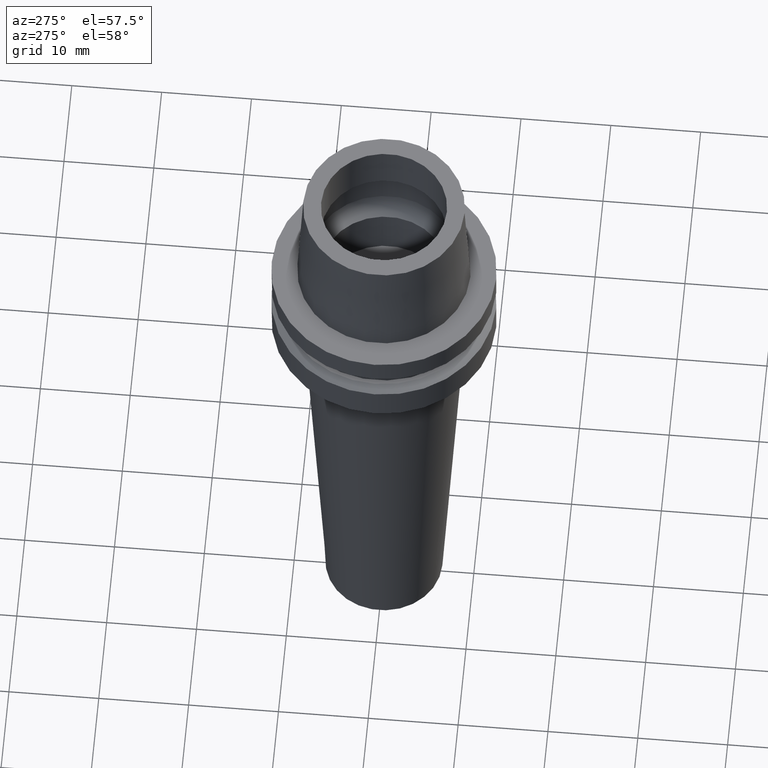
[diagram: clean part render]
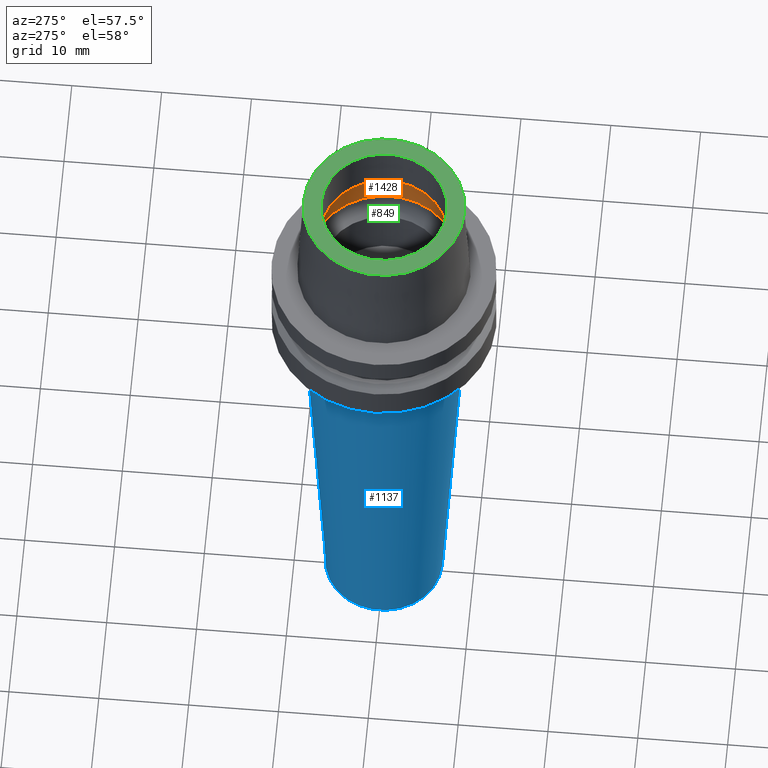
[diagram: same view with three faces highlighted in distinct colors, each labeled with its STEP entity id]
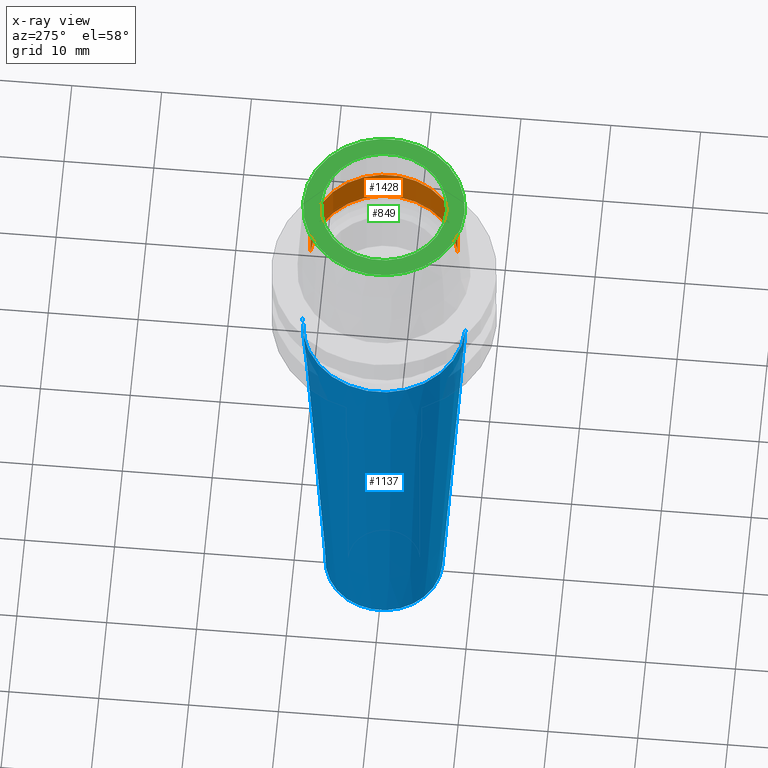
[diagram: x-ray of the same camera — body ghosted, the three highlighted faces saturated]
A machine part, auxiliary view with three faces highlighted in distinct colors.
The next image is the same camera in x-ray (body ghosted, the three faces saturated) — at least one of them is partly hidden behind the body in this view.
Their STEP definitions:

[orange] entity #1428 — the highlighted cylindrical surface (partial cylindrical patch) has radius 8.2 mm, axis along (0, 0, -1).
#630=CARTESIAN_POINT('',(0.E0,1.254650645726E-14,2.45E0));
#631=DIRECTION('',(0.E0,0.E0,-1.E0));
#632=DIRECTION('',(0.E0,1.E0,0.E0));
#633=AXIS2_PLACEMENT_3D('',#630,#631,#632);
#646=DIRECTION('',(0.E0,1.141865228637E-14,1.E0));
#647=VECTOR('',#646,4.355854811567E0);
#648=CARTESIAN_POINT('',(0.E0,8.2E0,2.45E0));
#649=LINE('',#648,#647);
#653=DIRECTION('',(0.E0,-1.141865228637E-14,1.E0));
#654=VECTOR('',#653,4.355854811567E0);
#655=CARTESIAN_POINT('',(0.E0,-8.2E0,2.45E0));
#656=LINE('',#655,#654);
#698=CARTESIAN_POINT('',(0.E0,1.312236783207E-14,6.805854811567E0));
#699=DIRECTION('',(0.E0,0.E0,1.E0));
#700=DIRECTION('',(0.E0,-1.E0,0.E0));
#701=AXIS2_PLACEMENT_3D('',#698,#699,#700);
#732=CARTESIAN_POINT('',(0.E0,8.2E0,6.805854811567E0));
#733=VERTEX_POINT('',#732);
#734=CARTESIAN_POINT('',(0.E0,-8.2E0,6.805854811567E0));
#735=VERTEX_POINT('',#734);
#736=CARTESIAN_POINT('',(0.E0,8.2E0,2.45E0));
#737=VERTEX_POINT('',#736);
#738=CARTESIAN_POINT('',(0.E0,-8.2E0,2.45E0));
#739=VERTEX_POINT('',#738);
#1414=CARTESIAN_POINT('',(0.E0,1.428550491205E-14,1.665E1));
#1415=DIRECTION('',(0.E0,0.E0,-1.E0));
#1416=DIRECTION('',(0.E0,-1.E0,0.E0));
#1417=AXIS2_PLACEMENT_3D('',#1414,#1415,#1416);
#1418=CYLINDRICAL_SURFACE('',#1417,8.2E0);
#1420=ORIENTED_EDGE('',*,*,#1419,.T.);
#1422=ORIENTED_EDGE('',*,*,#1421,.F.);
#1424=ORIENTED_EDGE('',*,*,#1423,.F.);
#1425=ORIENTED_EDGE('',*,*,#1407,.F.);
#1426=EDGE_LOOP('',(#1420,#1422,#1424,#1425));
#1427=FACE_OUTER_BOUND('',#1426,.F.);
#634=CIRCLE('',#633,8.2E0);
#702=CIRCLE('',#701,8.2E0);
#1407=EDGE_CURVE('',#737,#739,#634,.T.);
#1419=EDGE_CURVE('',#737,#733,#649,.T.);
#1421=EDGE_CURVE('',#735,#733,#702,.T.);
#1423=EDGE_CURVE('',#739,#735,#656,.T.);
#1428=ADVANCED_FACE('',(#1427),#1418,.F.);

[blue] entity #1137 — the highlighted conical surface has half-angle 3 deg.
#301=CARTESIAN_POINT('',(0.E0,1.096058885237E-14,-1.1E1));
#302=DIRECTION('',(0.E0,0.E0,-1.E0));
#303=DIRECTION('',(0.E0,-1.E0,0.E0));
#304=AXIS2_PLACEMENT_3D('',#301,#302,#303);
#316=DIRECTION('',(0.E0,-5.233595624294E-2,-9.986295347546E-1));
#317=VECTOR('',#316,4.906724495390E1);
#318=CARTESIAN_POINT('',(0.E0,9.067981184869E0,-1.1E1));
#319=LINE('',#318,#317);
#331=DIRECTION('',(0.E0,5.233595624294E-2,-9.986295347546E-1));
#332=VECTOR('',#331,4.906724495390E1);
#333=CARTESIAN_POINT('',(0.E0,-9.067981184869E0,-1.1E1));
#334=LINE('',#333,#332);
#346=CARTESIAN_POINT('',(0.E0,0.E0,-6.E1));
#347=DIRECTION('',(0.E0,0.E0,1.E0));
#348=DIRECTION('',(0.E0,1.E0,0.E0));
#349=AXIS2_PLACEMENT_3D('',#346,#347,#348);
#784=CARTESIAN_POINT('',(0.E0,-6.5E0,-6.E1));
#785=CARTESIAN_POINT('',(0.E0,6.5E0,-6.E1));
#786=VERTEX_POINT('',#784);
#787=VERTEX_POINT('',#785);
#788=CARTESIAN_POINT('',(0.E0,9.067981184869E0,-1.1E1));
#789=VERTEX_POINT('',#788);
#790=CARTESIAN_POINT('',(0.E0,-9.067981184869E0,-1.1E1));
#791=VERTEX_POINT('',#790);
#1125=CARTESIAN_POINT('',(0.E0,0.E0,-3.55E1));
#1126=DIRECTION('',(0.E0,0.E0,1.E0));
#1127=DIRECTION('',(0.E0,1.E0,0.E0));
#1128=AXIS2_PLACEMENT_3D('',#1125,#1126,#1127);
#1129=CONICAL_SURFACE('',#1128,7.783990592435E0,3.E0);
#1130=ORIENTED_EDGE('',*,*,#1115,.F.);
#1131=ORIENTED_EDGE('',*,*,#1092,.F.);
#1132=ORIENTED_EDGE('',*,*,#1119,.T.);
#1134=ORIENTED_EDGE('',*,*,#1133,.F.);
#1135=EDGE_LOOP('',(#1130,#1131,#1132,#1134));
#1136=FACE_OUTER_BOUND('',#1135,.F.);
#305=CIRCLE('',#304,9.067981184869E0);
#350=CIRCLE('',#349,6.5E0);
#1092=EDGE_CURVE('',#791,#789,#305,.T.);
#1115=EDGE_CURVE('',#789,#787,#319,.T.);
#1119=EDGE_CURVE('',#791,#786,#334,.T.);
#1133=EDGE_CURVE('',#787,#786,#350,.T.);
#1137=ADVANCED_FACE('',(#1136),#1129,.T.);

[green] entity #849 — the highlighted planar face has unit normal (0, 0, -1).
#17=CARTESIAN_POINT('',(0.E0,1.304248841092E-14,1.3E1));
#18=DIRECTION('',(0.E0,0.E0,-1.E0));
#19=DIRECTION('',(0.E0,-1.E0,0.E0));
#20=AXIS2_PLACEMENT_3D('',#17,#18,#19);
#26=CARTESIAN_POINT('',(0.E0,1.304248841092E-14,1.3E1));
#27=DIRECTION('',(0.E0,0.E0,-1.E0));
#28=DIRECTION('',(0.E0,1.E0,0.E0));
#29=AXIS2_PLACEMENT_3D('',#26,#27,#28);
#34=CARTESIAN_POINT('',(0.E0,1.428550491205E-14,1.3E1));
#35=DIRECTION('',(0.E0,0.E0,1.E0));
#36=DIRECTION('',(0.E0,-1.E0,0.E0));
#37=AXIS2_PLACEMENT_3D('',#34,#35,#36);
#42=CARTESIAN_POINT('',(0.E0,1.428550491205E-14,1.3E1));
#43=DIRECTION('',(0.E0,0.E0,1.E0));
#44=DIRECTION('',(0.E0,1.E0,0.E0));
#45=AXIS2_PLACEMENT_3D('',#42,#43,#44);
#720=CARTESIAN_POINT('',(0.E0,-8.975000960130E0,1.3E1));
#721=CARTESIAN_POINT('',(0.E0,8.975000960130E0,1.3E1));
#722=VERTEX_POINT('',#720);
#723=VERTEX_POINT('',#721);
#724=CARTESIAN_POINT('',(0.E0,-7.E0,1.3E1));
#725=CARTESIAN_POINT('',(0.E0,7.E0,1.3E1));
#726=VERTEX_POINT('',#724);
#727=VERTEX_POINT('',#725);
#832=CARTESIAN_POINT('',(0.E0,1.383850883037E-14,1.3E1));
#833=DIRECTION('',(0.E0,0.E0,-1.E0));
#834=DIRECTION('',(0.E0,-1.E0,0.E0));
#835=AXIS2_PLACEMENT_3D('',#832,#833,#834);
#836=PLANE('',#835);
#838=ORIENTED_EDGE('',*,*,#837,.T.);
#840=ORIENTED_EDGE('',*,*,#839,.T.);
#841=EDGE_LOOP('',(#838,#840));
#842=FACE_OUTER_BOUND('',#841,.F.);
#844=ORIENTED_EDGE('',*,*,#843,.T.);
#846=ORIENTED_EDGE('',*,*,#845,.T.);
#847=EDGE_LOOP('',(#844,#846));
#848=FACE_BOUND('',#847,.F.);
#21=CIRCLE('',#20,8.975000960130E0);
#30=CIRCLE('',#29,8.975000960130E0);
#38=CIRCLE('',#37,7.E0);
#46=CIRCLE('',#45,7.E0);
#837=EDGE_CURVE('',#722,#723,#21,.T.);
#839=EDGE_CURVE('',#723,#722,#30,.T.);
#843=EDGE_CURVE('',#726,#727,#38,.T.);
#845=EDGE_CURVE('',#727,#726,#46,.T.);
#849=ADVANCED_FACE('',(#842,#848),#836,.F.);